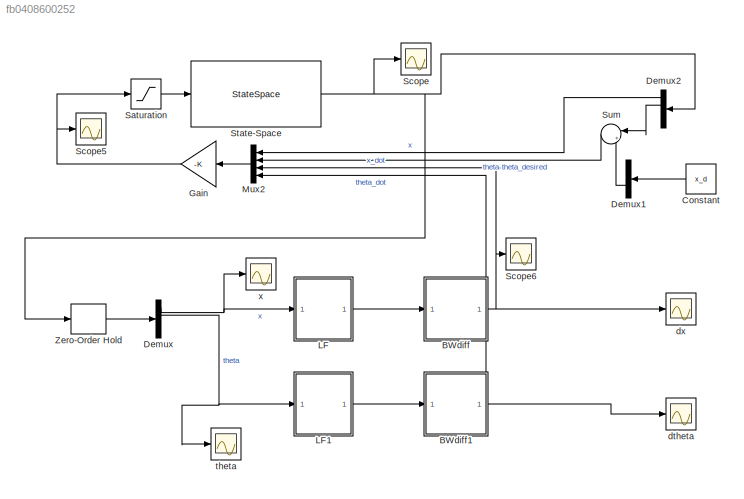
MODEL slx_fb0408600252
KIND model
CONFIG AbsTol = auto
CONFIG EnableMultiTasking = off
CONFIG FixedStep = auto
CONFIG MaxStep = auto
CONFIG MinStep = auto
CONFIG RelTol = 1e-3
CONFIG SampleTimeConstraint = Unconstrained
CONFIG SolverName = VariableStepAuto
CONFIG StartTime = 0.0
CONFIG StopTime = 10
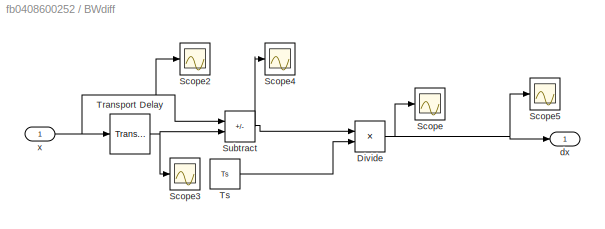
BLOCK [SubSystem] BWdiff
  Ports = [1, 1]
  RequestExecContextInheritance = off
BLOCK [Product] BWdiff/Divide
  Inputs = */
  Ports = [2, 1]
BLOCK [Scope] BWdiff/Scope
  Floating = off
  NumInputPorts = 1
  Ports = [1]
  ScopeSpecificationString = Simulink.scopes.TimeScopeBlockCfg('CurrentConfiguration', extmgr.ConfigurationSet(extmgr.Configuration('Core','General UI',true),extmgr.Configuration('Core','Source UI',true),extmgr.Configuration('Sources','WiredSimulink',true,'DataLoggingVariableName','ScopeData2'),extmgr.Configuration('Visuals','Time Domain',true,'SerializedDisplays',{struct('MinYLimReal','-0.00094','MaxYLimReal','0.01541','YLab...<+1414ch>
BLOCK [Scope] BWdiff/Scope2
  Floating = off
  NumInputPorts = 1
  Ports = [1]
  ScopeSpecificationString = Simulink.scopes.TimeScopeBlockCfg('CurrentConfiguration', extmgr.ConfigurationSet(extmgr.Configuration('Core','General UI',true),extmgr.Configuration('Core','Source UI',true),extmgr.Configuration('Sources','WiredSimulink',true,'DataLoggingVariableName','ScopeData3'),extmgr.Configuration('Visuals','Time Domain',true,'SerializedDisplays',{struct('MinYLimReal','-0.25249','MaxYLimReal','0.14027','YLab...<+1434ch>
BLOCK [Scope] BWdiff/Scope3
  Floating = off
  NumInputPorts = 1
  Ports = [1]
  ScopeSpecificationString = Simulink.scopes.TimeScopeBlockCfg('CurrentConfiguration', extmgr.ConfigurationSet(extmgr.Configuration('Core','General UI',true),extmgr.Configuration('Core','Source UI',true),extmgr.Configuration('Sources','WiredSimulink',true,'DataLoggingVariableName','ScopeData4'),extmgr.Configuration('Visuals','Time Domain',true,'SerializedDisplays',{struct('MinYLimReal','-0.25249','MaxYLimReal','0.14027','YLab...<+1415ch>
BLOCK [Scope] BWdiff/Scope4
  Floating = off
  NumInputPorts = 1
  Ports = [1]
  ScopeSpecificationString = Simulink.scopes.TimeScopeBlockCfg('CurrentConfiguration', extmgr.ConfigurationSet(extmgr.Configuration('Core','General UI',true),extmgr.Configuration('Core','Source UI',true),extmgr.Configuration('Sources','WiredSimulink',true,'DataLoggingVariableName','ScopeData5'),extmgr.Configuration('Visuals','Time Domain',true,'SerializedDisplays',{struct('MinYLimReal','-0.00051','MaxYLimReal','0.00046','YLab...<+1416ch>
BLOCK [Scope] BWdiff/Scope5
  Floating = off
  NumInputPorts = 1
  Ports = [1]
  ScopeSpecificationString = Simulink.scopes.TimeScopeBlockCfg('CurrentConfiguration', extmgr.ConfigurationSet(extmgr.Configuration('Core','General UI',true),extmgr.Configuration('Core','Source UI',true),extmgr.Configuration('Sources','WiredSimulink',true,'DataLoggingVariableName','ScopeData6'),extmgr.Configuration('Visuals','Time Domain',true,'SerializedDisplays',{struct('MinYLimReal','-0.000029','MaxYLimReal','0.00005','YLa...<+1427ch>
BLOCK [Sum] BWdiff/Subtract
  IconShape = rectangular
  Inputs = +-
  Ports = [2, 1]
BLOCK [TransportDelay] BWdiff/Transport Delay
  DelayTime = Ts
  Ports = [1, 1]
BLOCK [Constant] BWdiff/Ts
  Value = Ts
BLOCK [Outport] BWdiff/dx
BLOCK [Inport] BWdiff/x
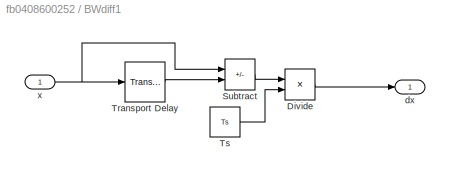
BLOCK [SubSystem] BWdiff1
  Ports = [1, 1]
  RequestExecContextInheritance = off
BLOCK [Product] BWdiff1/Divide
  Inputs = */
  Ports = [2, 1]
BLOCK [Sum] BWdiff1/Subtract
  IconShape = rectangular
  Inputs = +-
  Ports = [2, 1]
BLOCK [TransportDelay] BWdiff1/Transport Delay
  DelayTime = Ts
  Ports = [1, 1]
BLOCK [Constant] BWdiff1/Ts
  Value = Ts
BLOCK [Outport] BWdiff1/dx
BLOCK [Inport] BWdiff1/x
BLOCK [Constant] Constant
  Value = x_d
BLOCK [Demux] Demux
  Ports = [1, 4]
BLOCK [Demux] Demux1
  Outputs = 2
  Ports = [1, 2]
BLOCK [Demux] Demux2
  Ports = [1, 4]
BLOCK [Gain] Gain
  Gain = -K
  Multiplication = Matrix(K*u) (u vector)
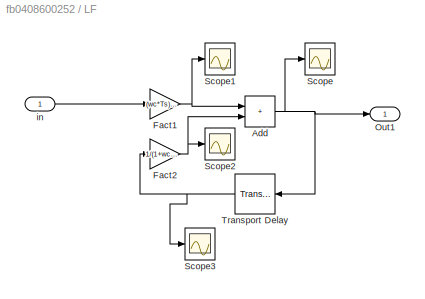
BLOCK [SubSystem] LF
  Ports = [1, 1]
  RequestExecContextInheritance = off
BLOCK [Sum] LF/Add
  IconShape = rectangular
  Ports = [2, 1]
BLOCK [Gain] LF/Fact1
  Gain = (wc*Ts)/(1+wc*Ts)
BLOCK [Gain] LF/Fact2
  Gain = 1/(1+wc*Ts)
BLOCK [Outport] LF/Out1
BLOCK [Scope] LF/Scope
  Floating = off
  NumInputPorts = 1
  Ports = [1]
  ScopeSpecificationString = Simulink.scopes.TimeScopeBlockCfg('CurrentConfiguration', extmgr.ConfigurationSet(extmgr.Configuration('Core','General UI',true),extmgr.Configuration('Core','Source UI',true),extmgr.Configuration('Sources','WiredSimulink',true,'DataLoggingVariableName','ScopeData7'),extmgr.Configuration('Visuals','Time Domain',true,'SerializedDisplays',{struct('MinYLimReal','-0.17621','MaxYLimReal','0.22798','YLab...<+1381ch>
BLOCK [Scope] LF/Scope1
  Floating = off
  NumInputPorts = 1
  Ports = [1]
  ScopeSpecificationString = Simulink.scopes.TimeScopeBlockCfg('CurrentConfiguration', extmgr.ConfigurationSet(extmgr.Configuration('Core','General UI',true),extmgr.Configuration('Core','Source UI',true),extmgr.Configuration('Sources','WiredSimulink',true,'DataLoggingVariableName','ScopeData8'),extmgr.Configuration('Visuals','Time Domain',true,'SerializedDisplays',{struct('MinYLimReal','0.00016','MaxYLimReal','0.00153','YLabe...<+1446ch>
BLOCK [Scope] LF/Scope2
  Floating = off
  NumInputPorts = 1
  Ports = [1]
  ScopeSpecificationString = Simulink.scopes.TimeScopeBlockCfg('CurrentConfiguration', extmgr.ConfigurationSet(extmgr.Configuration('Core','General UI',true),extmgr.Configuration('Core','Source UI',true),extmgr.Configuration('Sources','WiredSimulink',true,'DataLoggingVariableName','ScopeData9'),extmgr.Configuration('Visuals','Time Domain',true,'SerializedDisplays',{struct('MinYLimReal','-0.00032','MaxYLimReal','0.00162','YLab...<+1412ch>
BLOCK [Scope] LF/Scope3
  Floating = off
  NumInputPorts = 1
  Ports = [1]
  ScopeSpecificationString = Simulink.scopes.TimeScopeBlockCfg('CurrentConfiguration', extmgr.ConfigurationSet(extmgr.Configuration('Core','General UI',true),extmgr.Configuration('Core','Source UI',true),extmgr.Configuration('Sources','WiredSimulink',true,'DataLoggingVariableName','ScopeData1'),extmgr.Configuration('Visuals','Time Domain',true),extmgr.Configuration('Tools','Plot Navigation',true),extmgr.Configuration('Tools',...<+40ch>
BLOCK [TransportDelay] LF/Transport Delay
  DelayTime = Ts
  Ports = [1, 1]
BLOCK [Inport] LF/in
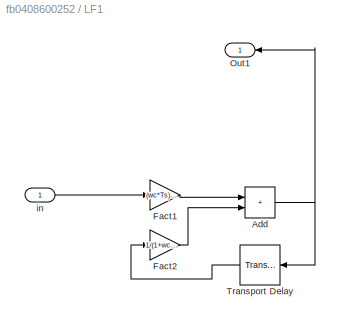
BLOCK [SubSystem] LF1
  Ports = [1, 1]
  RequestExecContextInheritance = off
BLOCK [Sum] LF1/Add
  IconShape = rectangular
  Ports = [2, 1]
BLOCK [Gain] LF1/Fact1
  Gain = (wc*Ts)/(1+wc*Ts)
BLOCK [Gain] LF1/Fact2
  Gain = 1/(1+wc*Ts)
BLOCK [Outport] LF1/Out1
BLOCK [TransportDelay] LF1/Transport Delay
  DelayTime = Ts
  Ports = [1, 1]
BLOCK [Inport] LF1/in
BLOCK [Mux] Mux2
  DisplayOption = bar
  Ports = [4, 1]
BLOCK [Saturate] Saturation
  LowerLimit = -5
  UpperLimit = 5
BLOCK [Scope] Scope
  Floating = off
  NumInputPorts = 1
  Ports = [1]
  ScopeSpecificationString = Simulink.scopes.TimeScopeBlockCfg('CurrentConfiguration', extmgr.ConfigurationSet(extmgr.Configuration('Core','General UI',true,'FigureColor',[1 1 1]),extmgr.Configuration('Core','Source UI',true),extmgr.Configuration('Sources','WiredSimulink',true,'DataLoggingVariableName','ScopeData1'),extmgr.Configuration('Visuals','Time Domain',true,'SerializedDisplays',{struct('MinYLimReal','-0.31745','MaxYLi...<+1666ch>
BLOCK [Scope] Scope5
  Floating = off
  NumInputPorts = 1
  Ports = [1]
  ScopeSpecificationString = Simulink.scopes.TimeScopeBlockCfg('CurrentConfiguration', extmgr.ConfigurationSet(extmgr.Configuration('Core','General UI',true),extmgr.Configuration('Core','Source UI',true),extmgr.Configuration('Sources','WiredSimulink',true,'DataLoggingVariableName','ScopeData3'),extmgr.Configuration('Visuals','Time Domain',true,'SerializedDisplays',{struct('MinYLimReal','-2.50967','MaxYLimReal','1.6823','YLabe...<+1402ch>
BLOCK [Scope] Scope6
  Floating = off
  NumInputPorts = 1
  Ports = [1]
  ScopeSpecificationString = Simulink.scopes.TimeScopeBlockCfg('CurrentConfiguration', extmgr.ConfigurationSet(extmgr.Configuration('Core','General UI',true),extmgr.Configuration('Core','Source UI',true),extmgr.Configuration('Sources','WiredSimulink',true,'DataLoggingVariableName','ScopeData2'),extmgr.Configuration('Visuals','Time Domain',true,'SerializedDisplays',{struct('MinYLimReal','-0.00818','MaxYLimReal','0.0044','YLabe...<+1475ch>
BLOCK [StateSpace] State-Space
  A = sys2.A
  B = sys2.B
  C = eye(4)
  D = zeros(4,1)
  InitialCondition = initial_conditions'
  Ports = [1, 1]
BLOCK [Sum] Sum
  Inputs = |+-
  Ports = [2, 1]
BLOCK [ZeroOrderHold] Zero-Order Hold
  SampleTime = Ts
BLOCK [Scope] dtheta
  Floating = off
  NumInputPorts = 1
  Ports = [1]
  ScopeSpecificationString = Simulink.scopes.TimeScopeBlockCfg('CurrentConfiguration', extmgr.ConfigurationSet(extmgr.Configuration('Core','General UI',true),extmgr.Configuration('Core','Source UI',true),extmgr.Configuration('Sources','WiredSimulink',true,'DataLoggingVariableName','ScopeData2'),extmgr.Configuration('Visuals','Time Domain',true,'SerializedDisplays',{struct('MinYLimReal','-0.13746','MaxYLimReal','0.29087','YLab...<+1368ch>
BLOCK [Scope] dx
  Floating = off
  NumInputPorts = 1
  Ports = [1]
  ScopeSpecificationString = Simulink.scopes.TimeScopeBlockCfg('CurrentConfiguration', extmgr.ConfigurationSet(extmgr.Configuration('Core','General UI',true),extmgr.Configuration('Core','Source UI',true),extmgr.Configuration('Sources','WiredSimulink',true,'DataLoggingVariableName','ScopeData1'),extmgr.Configuration('Visuals','Time Domain',true,'SerializedDisplays',{struct('MinYLimReal','-0.22476','MaxYLimReal','0.33769','YLab...<+1394ch>
BLOCK [Scope] theta
  Floating = off
  NumInputPorts = 1
  Ports = [1]
  ScopeSpecificationString = Simulink.scopes.TimeScopeBlockCfg('CurrentConfiguration', extmgr.ConfigurationSet(extmgr.Configuration('Core','General UI',true),extmgr.Configuration('Core','Source UI',true),extmgr.Configuration('Sources','WiredSimulink',true,'DataLoggingVariableName','ScopeData2'),extmgr.Configuration('Visuals','Time Domain',true,'SerializedDisplays',{struct('MinYLimReal','-0.02437','MaxYLimReal','0.03391','YLab...<+1364ch>
BLOCK [Scope] x
  Floating = off
  NumInputPorts = 1
  Ports = [1]
  ScopeSpecificationString = Simulink.scopes.TimeScopeBlockCfg('CurrentConfiguration', extmgr.ConfigurationSet(extmgr.Configuration('Core','General UI',true),extmgr.Configuration('Core','Source UI',true),extmgr.Configuration('Sources','WiredSimulink',true,'DataLoggingVariableName','ScopeData1'),extmgr.Configuration('Visuals','Time Domain',true,'SerializedDisplays',{struct('MinYLimReal','-0.03551','MaxYLimReal','0.05576','YLab...<+1360ch>
NET BWdiff/Divide:1 -> BWdiff/Scope5:1, BWdiff/Scope:1, BWdiff/dx:1
NET BWdiff/Subtract:1 -> BWdiff/Divide:1, BWdiff/Scope4:1
NET BWdiff/Transport Delay:1 -> BWdiff/Scope3:1, BWdiff/Subtract:2
LINE BWdiff/Ts:1 -> BWdiff/Divide:2
NET BWdiff/x:1 -> BWdiff/Scope2:1, BWdiff/Subtract:1, BWdiff/Transport Delay:1
LINE BWdiff1/Divide:1 -> BWdiff1/dx:1
LINE BWdiff1/Subtract:1 -> BWdiff1/Divide:1
LINE BWdiff1/Transport Delay:1 -> BWdiff1/Subtract:2
LINE BWdiff1/Ts:1 -> BWdiff1/Divide:2
NET BWdiff1/x:1 -> BWdiff1/Subtract:1, BWdiff1/Transport Delay:1
NET BWdiff1:1 -> Mux2:4, dtheta:1
NET BWdiff:1 -> Mux2:3, Scope6:1, dx:1
LINE Constant:1 -> Demux1:1
LINE Demux1:2 -> Sum:2
LINE Demux2:1 -> Mux2:1
LINE Demux2:2 -> Sum:1
NET Demux:1 -> LF:1, x:1
NET Demux:2 -> LF1:1, theta:1
NET Gain:1 -> Saturation:1, Scope5:1
NET LF/Add:1 -> LF/Out1:1, LF/Scope:1, LF/Transport Delay:1
NET LF/Fact1:1 -> LF/Add:1, LF/Scope1:1
NET LF/Fact2:1 -> LF/Add:2, LF/Scope2:1
NET LF/Transport Delay:1 -> LF/Fact2:1, LF/Scope3:1
LINE LF/in:1 -> LF/Fact1:1
NET LF1/Add:1 -> LF1/Out1:1, LF1/Transport Delay:1
LINE LF1/Fact1:1 -> LF1/Add:1
LINE LF1/Fact2:1 -> LF1/Add:2
LINE LF1/Transport Delay:1 -> LF1/Fact2:1
LINE LF1/in:1 -> LF1/Fact1:1
LINE LF1:1 -> BWdiff1:1
LINE LF:1 -> BWdiff:1
LINE Mux2:1 -> Gain:1
LINE Saturation:1 -> State-Space:1
NET State-Space:1 -> Demux2:1, Scope:1, Zero-Order Hold:1
LINE Sum:1 -> Mux2:2
LINE Zero-Order Hold:1 -> Demux:1
note: NET lines group one-source signal fan-out (src -> all destinations, sorted); 1:1 wires keep LINE
